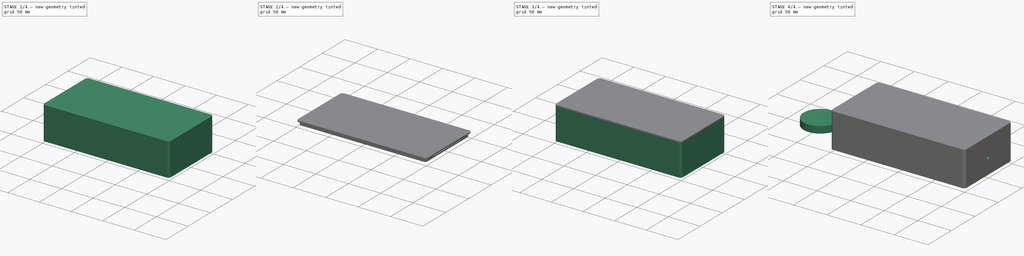
[diagram: build sequence overview — one tinted view per stage of 4, left to right]
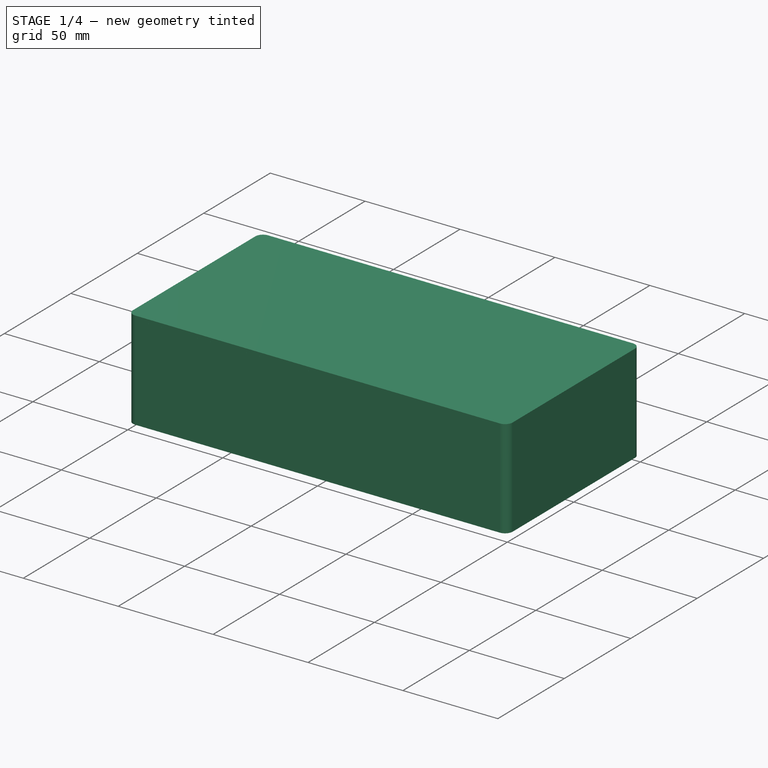
[diagram: stage 1 of 4 — iso view after this stage's code; geometry added in this stage tinted green]
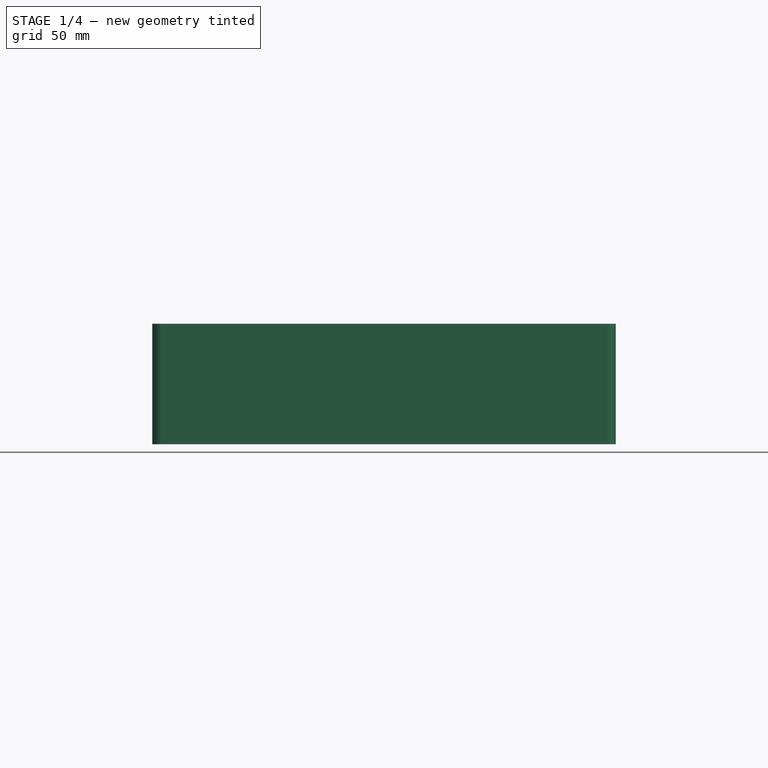
[diagram: stage 1 of 4 — front view after this stage's code; geometry added in this stage tinted green]
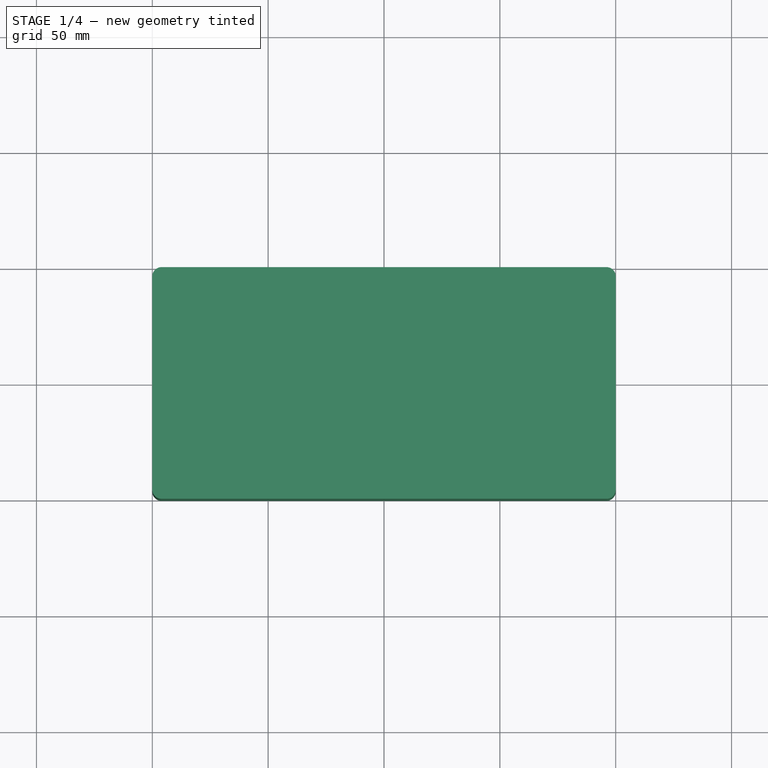
[diagram: stage 1 of 4 — top view after this stage's code; geometry added in this stage tinted green]
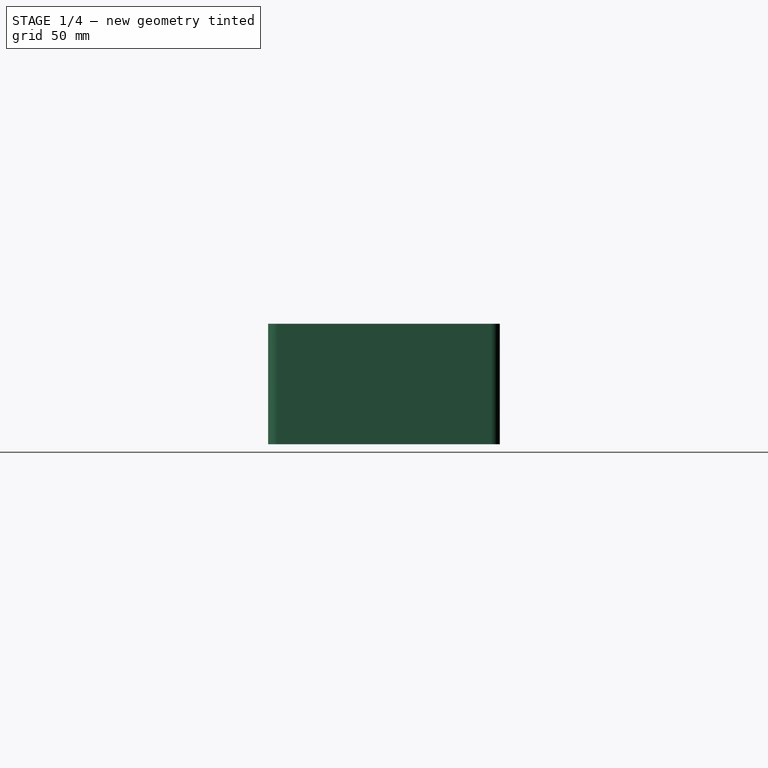
[diagram: stage 1 of 4 — right view after this stage's code; geometry added in this stage tinted green]
FCSTD DOCUMENT  (FreeCAD 0.18R15997 (Git))
Label: ParaBox-5-1
License: All rights reserved
LicenseURL: http://en.wikipedia.org/wiki/All_rights_reserved
objects: Sketcher::SketchObject×8, PartDesign::Pad×5, PartDesign::Plane×5, PartDesign::Body×4, PartDesign::Pocket×3, PartDesign::ShapeBinder×2, PartDesign::Mirrored×2, Spreadsheet::Sheet×1, PartDesign::Thickness×1, PartDesign::Line×1, PartDesign::Chamfer×1, PartDesign::FeatureBase×1
note: 41 computed .brp shape members not serialized (recipe doc carries the construction recipe); baked Part::Feature solids carry a one-line shape summary decoded from their .brp

FEATURE [Sketcher::SketchObject] Sketch  label="BoxBottomSketch"
  MapMode = 5
  Support = -> [XY_Plane]
  expr: Constraints[12] = Spreadsheet.length
  expr: Constraints[13] = Spreadsheet.width
  expr: Constraints[10] = Spreadsheet.outsidefillet
  sketch-geometry (8):
    g0: LineSegment StartX=-96 StartY=50 StartZ=0 EndX=96 EndY=50 EndZ=0
    g1: LineSegment StartX=100 StartY=46 StartZ=0 EndX=100 EndY=-46 EndZ=0
    g2: LineSegment StartX=96 StartY=-50 StartZ=0 EndX=-96 EndY=-50 EndZ=0
    g3: LineSegment StartX=-100 StartY=-46 StartZ=0 EndX=-100 EndY=46 EndZ=0
    g4: ArcOfCircle CenterX=-96 CenterY=46 CenterZ=0 NormalX=0 NormalY=0 NormalZ=1 AngleXU=0 Radius=4 StartAngle=1.5708 EndAngle=3.14159
    g5: ArcOfCircle CenterX=-96 CenterY=-46 CenterZ=0 NormalX=0 NormalY=0 NormalZ=1 AngleXU=0 Radius=4 StartAngle=3.14159 EndAngle=4.71239
    g6: ArcOfCircle CenterX=96 CenterY=-46 CenterZ=0 NormalX=0 NormalY=0 NormalZ=1 AngleXU=0 Radius=4 StartAngle=4.71239 EndAngle=6.28319
    g7: ArcOfCircle CenterX=96 CenterY=46 CenterZ=0 NormalX=0 NormalY=0 NormalZ=1 AngleXU=0 Radius=4 StartAngle=0 EndAngle=1.5708
  constraints (19):
    c: Horizontal(g2)
    c: Vertical(g3)
    c: Tangent(g0,g4) = 1.5708
    c: Tangent(g3,g4) = 1.5708
    c: Tangent(g2,g5) = 1.5708
    c: Tangent(g3,g5) = 1.5708
    c: Tangent(g1,g6) = 1.5708
    c: Tangent(g2,g6) = 1.5708
    c: Tangent(g0,g7) = 1.5708
    c: Tangent(g1,g7) = 1.5708
    c: Radius(g5) = 4
    c: Vertical(g1)
    c: DistanceX(g3,g1) = 200
    c: DistanceY(g2,g0) = 100
    c: Horizontal(g0)
    c: Symmetric(g5,g7,g-1)
    c: Equal(g5,g4)
    c: Equal(g4,g7)
    c: Equal(g7,g6)
FEATURE [Spreadsheet::Sheet] Spreadsheet
  cells = A1=width; B1(width)=100; A2=length; B2(length)=200; A3=height; B3(height)=50; A4=wall; B4(wall)=2; A5=gap; B5(gap)=0.8; A6=outside fillet; B6(outsidefillet)=4; A7=inside fillet; B7(insidefillet)=4; A8=tolerance; B8(tol)=0.05; A9=end hole dia.; B9(endholedia)=5; A10=end cutout height; B10(endcutheight)==Spreadsheet.height * 0.2; A11=end cutout width; B11(endcutwidth)==Spreadsheet.width * 0.4; A12=end cutout offset from bottom; B12(endcutoffset)==Spreadsheet.wall + Spreadsheet.height * 0.1
FEATURE [PartDesign::Pad] Pad  label="BoxBottomPad"
  Length = 50
  Length2 = 100
  Profile = -> Sketch
  Type = 0
  expr: Length = Spreadsheet.height
FEATURE [PartDesign::Body] Body001  label="50mmSizeReferencBody"
  Group = -> [Sketch001,Pad001]
  Origin = -> Origin001
  Tip = -> Pad001
FEATURE [PartDesign::Thickness] Thickness  label="BoxBottomShell"
  Base = -> Pad [Face10]
  BaseFeature = -> Pad
  Join = 1
  Mode = 0
  Reversed = true
  Value = 2
  expr: Value = Spreadsheet.wall
FEATURE [PartDesign::ShapeBinder] ShapeBinder001
  Support = -> [Sketch]
  TraceSupport = false
FEATURE [PartDesign::Plane] DatumPlane001
  AttachmentOffset = pos=(0,0,50) rot=(0,0,1;0rad)
  Length = 228.284
  MapMode = 2
  Placement = pos=(0,0,50) rot=(0,0,1;0rad)
  ResizeMode = 0
  Support = -> [ShapeBinder001]
  Width = 128.284
  expr: AttachmentOffset.Base.z = Spreadsheet.height
FEATURE [Sketcher::SketchObject] Sketch004  label="CoverSketch"
  MapMode = 5
  Placement = pos=(0,0,50) rot=(0,0,1;0rad)
  Support = -> [DatumPlane001]
  expr: Constraints[12] = Spreadsheet.outsidefillet
  expr: Constraints[10] = Spreadsheet.width
  expr: Constraints[8] = Spreadsheet.length
  sketch-geometry (8):
    g0: LineSegment StartX=-96 StartY=50 StartZ=0 EndX=96 EndY=50 EndZ=0
    g1: LineSegment StartX=100 StartY=46 StartZ=0 EndX=100 EndY=-46 EndZ=0
    g2: LineSegment StartX=96 StartY=-50 StartZ=0 EndX=-96 EndY=-50 EndZ=0
    g3: LineSegment StartX=-100 StartY=-46 StartZ=0 EndX=-100 EndY=46 EndZ=0
    g4: ArcOfCircle CenterX=-96 CenterY=46 CenterZ=0 NormalX=0 NormalY=0 NormalZ=1 AngleXU=0 Radius=4 StartAngle=1.5708 EndAngle=3.14159
    g5: ArcOfCircle CenterX=-96 CenterY=-46 CenterZ=0 NormalX=0 NormalY=0 NormalZ=1 AngleXU=0 Radius=4 StartAngle=3.14159 EndAngle=4.71239
    g6: ArcOfCircle CenterX=96 CenterY=-46 CenterZ=0 NormalX=0 NormalY=0 NormalZ=1 AngleXU=0 Radius=4 StartAngle=4.71239 EndAngle=6.28319
    g7: ArcOfCircle CenterX=96 CenterY=46 CenterZ=0 NormalX=0 NormalY=0 NormalZ=1 AngleXU=0 Radius=4 StartAngle=9e-16 EndAngle=1.5708
  constraints (19):
    c: Tangent(g0,g4) = 1.5708
    c: Tangent(g3,g4) = 1.5708
    c: Tangent(g3,g5) = 1.5708
    c: Tangent(g2,g5) = 1.5708
    c: Tangent(g0,g7) = 1.5708
    c: Tangent(g7,g1) = 1.5708
    c: Tangent(g6,g2) = 1.5708
    c: Tangent(g6,g1) = 1.5708
    c: DistanceX(g3,g1) = 200
    c: Horizontal(g0)
    c: DistanceY(g2,g0) = 100
    c: Vertical(g1)
    c: Radius(g4) = 4
    c: Vertical(g3)
    c: Horizontal(g2)
    c: Equal(g4,g7)
    c: Equal(g7,g6)
    c: Equal(g6,g5)
    c: Symmetric(g7,g5,g-1)
FEATURE [PartDesign::Pad] Pad003  label="CoverPad"
  Length = 2
  Length2 = 100
  Placement = pos=(0,0,50) rot=(0,0,1;0rad)
  Profile = -> Sketch004
  Type = 0
  expr: Length = Spreadsheet.wall
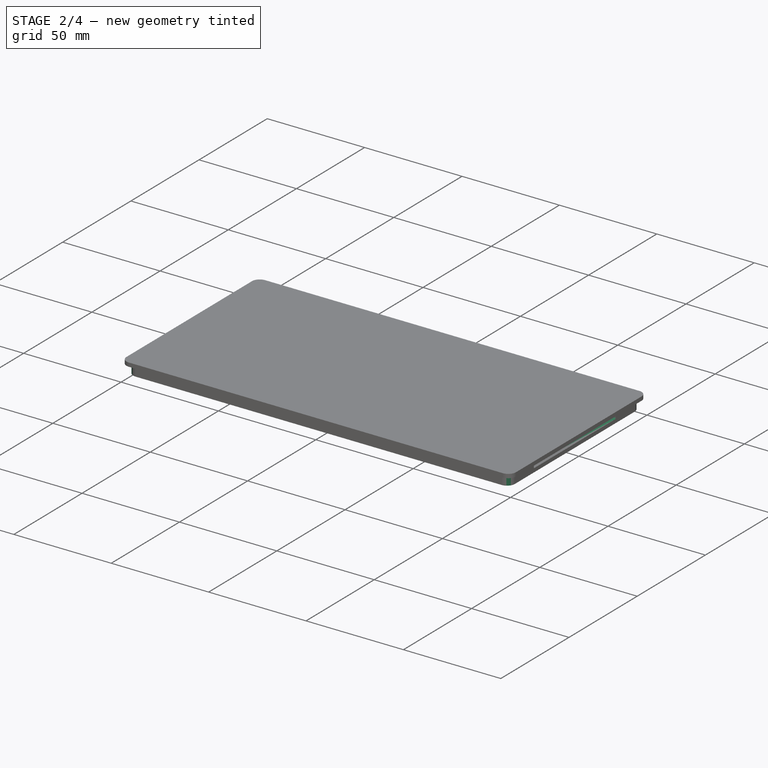
[diagram: stage 2 of 4 — iso view after this stage's code; geometry added in this stage tinted green]
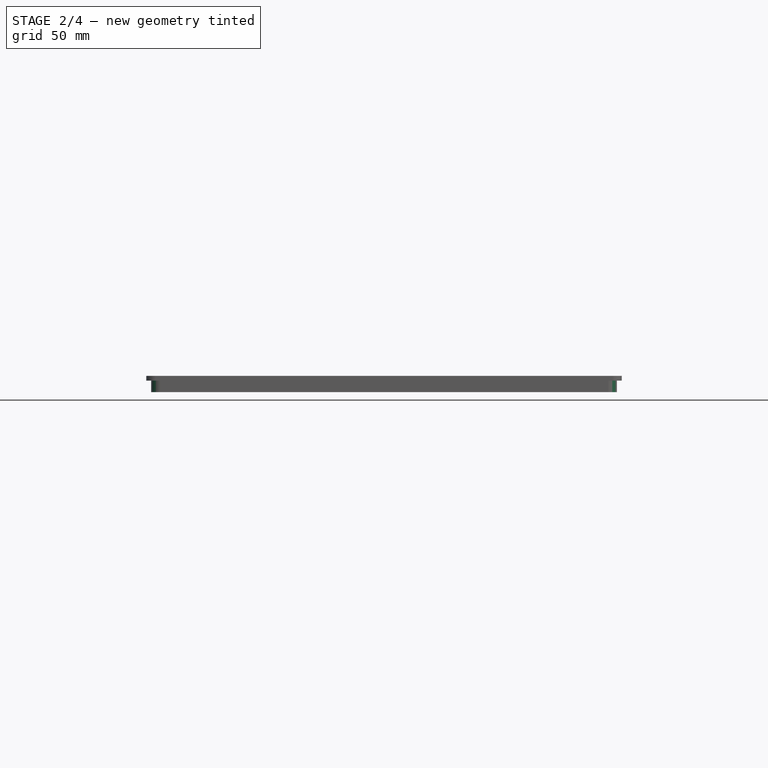
[diagram: stage 2 of 4 — front view after this stage's code; geometry added in this stage tinted green]
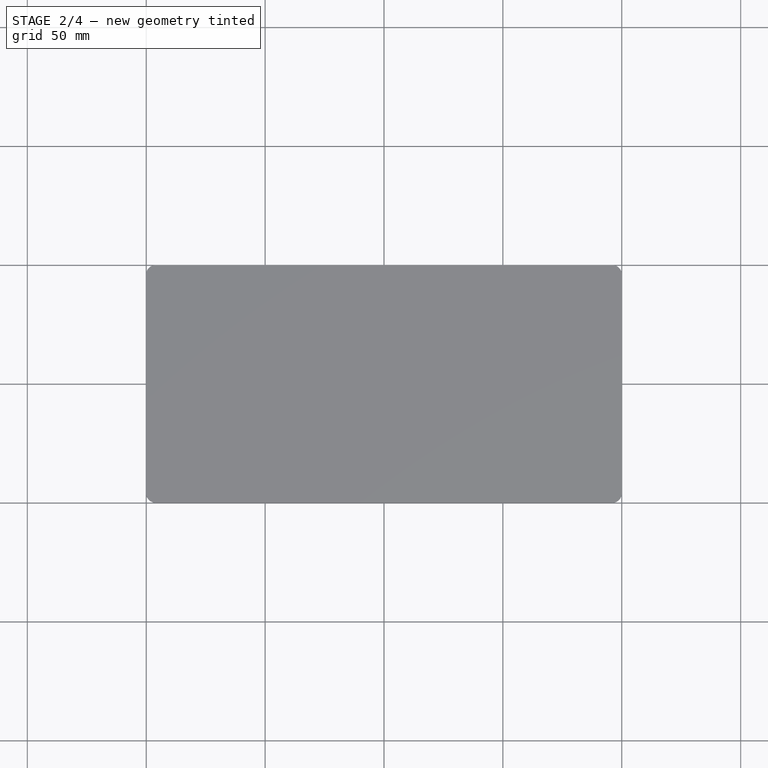
[diagram: stage 2 of 4 — top view after this stage's code; geometry added in this stage tinted green]
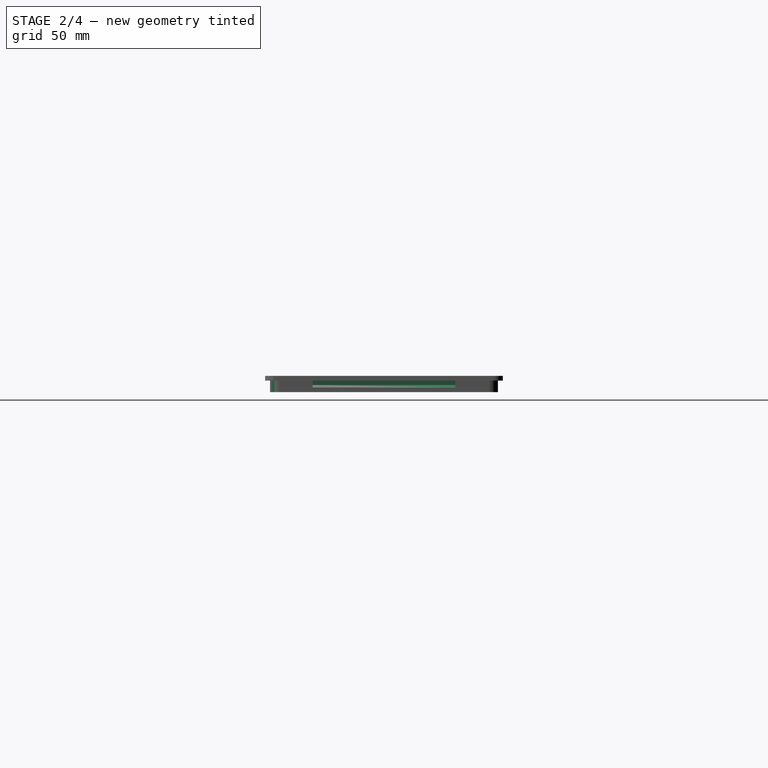
[diagram: stage 2 of 4 — right view after this stage's code; geometry added in this stage tinted green]
FEATURE [Sketcher::SketchObject] Sketch007  label="CoverLocatorSketch"
  MapMode = 5
  Placement = pos=(0,0,50) rot=(0,0,1;0rad)
  Support = -> [DatumPlane001]
  expr: Constraints[30] = Spreadsheet.insidefillet
  expr: Constraints[33] = Spreadsheet.width - 4.2 * Spreadsheet.wall
  expr: Constraints[32] = Spreadsheet.length - 4.2 * Spreadsheet.wall
  expr: Constraints[17] = Spreadsheet.width - 2 * (Spreadsheet.wall + Spreadsheet.tol)
  expr: Constraints[16] = Spreadsheet.length - 2 * (Spreadsheet.wall + Spreadsheet.tol)
  expr: Constraints[12] = Spreadsheet.insidefillet
  sketch-geometry (16):
    g0: LineSegment StartX=-93.95 StartY=47.95 StartZ=0 EndX=93.95 EndY=47.95 EndZ=0
    g1: LineSegment StartX=97.95 StartY=43.95 StartZ=0 EndX=97.95 EndY=-43.95 EndZ=0
    g2: LineSegment StartX=93.95 StartY=-47.95 StartZ=0 EndX=-93.95 EndY=-47.95 EndZ=0
    g3: LineSegment StartX=-97.95 StartY=-43.95 StartZ=0 EndX=-97.95 EndY=43.95 EndZ=0
    g4: ArcOfCircle CenterX=-93.95 CenterY=43.95 CenterZ=0 NormalX=0 NormalY=0 NormalZ=1 AngleXU=0 Radius=4 StartAngle=1.5708 EndAngle=3.14159
    g5: ArcOfCircle CenterX=-93.95 CenterY=-43.95 CenterZ=0 NormalX=0 NormalY=0 NormalZ=1 AngleXU=0 Radius=4 StartAngle=3.14159 EndAngle=4.71239
    g6: ArcOfCircle CenterX=93.95 CenterY=-43.95 CenterZ=0 NormalX=0 NormalY=0 NormalZ=1 AngleXU=0 Radius=4 StartAngle=4.71239 EndAngle=6.28319
    g7: ArcOfCircle CenterX=93.95 CenterY=43.95 CenterZ=0 NormalX=0 NormalY=0 NormalZ=1 AngleXU=0 Radius=4 StartAngle=-9e-16 EndAngle=1.5708
    g8: LineSegment StartX=-91.8 StartY=45.8 StartZ=0 EndX=91.8 EndY=45.8 EndZ=0
    g9: LineSegment StartX=95.8 StartY=41.8 StartZ=0 EndX=95.8 EndY=-41.8 EndZ=0
    g10: LineSegment StartX=91.8 StartY=-45.8 StartZ=0 EndX=-91.8 EndY=-45.8 EndZ=0
    g11: LineSegment StartX=-95.8 StartY=-41.8 StartZ=0 EndX=-95.8 EndY=41.8 EndZ=0
    g12: ArcOfCircle CenterX=-91.8 CenterY=41.8 CenterZ=0 NormalX=0 NormalY=0 NormalZ=1 AngleXU=0 Radius=4 StartAngle=1.5708 EndAngle=3.14159
    g13: ArcOfCircle CenterX=-91.8 CenterY=-41.8 CenterZ=0 NormalX=0 NormalY=0 NormalZ=1 AngleXU=0 Radius=4 StartAngle=3.14159 EndAngle=4.71239
    g14: ArcOfCircle CenterX=91.8 CenterY=-41.8 CenterZ=0 NormalX=0 NormalY=0 NormalZ=1 AngleXU=0 Radius=4 StartAngle=4.71239 EndAngle=6.28319
    g15: ArcOfCircle CenterX=91.8 CenterY=41.8 CenterZ=0 NormalX=0 NormalY=0 NormalZ=1 AngleXU=0 Radius=4 StartAngle=6e-16 EndAngle=1.5708
  constraints (36):
    c: Horizontal(g0)
    c: Horizontal(g2)
    c: Vertical(g1)
    c: Vertical(g3)
    c: Tangent(g0,g4) = 1.5708
    c: Tangent(g3,g4) = 1.5708
    c: Tangent(g2,g5) = 1.5708
    c: Tangent(g3,g5) = 1.5708
    c: Tangent(g1,g6) = 1.5708
    c: Tangent(g2,g6) = 1.5708
    c: Tangent(g0,g7) = 1.5708
    c: Tangent(g1,g7) = 1.5708
    c: Radius(g4) = 4
    c: Equal(g4,g5)
    c: Symmetric(g4,g7,g-2)
    c: Symmetric(g7,g6,g-1)
    c: Distance(g3,g1) = 195.9
    c: Distance(g0,g2) = 95.9
    c: Horizontal(g8)
    c: Horizontal(g10)
    c: Vertical(g9)
    c: Vertical(g11)
    c: Tangent(g8,g12) = 1.5708
    c: Tangent(g11,g12) = 1.5708
    c: Tangent(g10,g13) = 1.5708
    c: Tangent(g11,g13) = 1.5708
    c: Tangent(g9,g14) = 1.5708
    c: Tangent(g10,g14) = 1.5708
    c: Tangent(g8,g15) = 1.5708
    c: Tangent(g9,g15) = 1.5708
    c: Radius(g12) = 4
    c: Equal(g12,g13)
    c: Distance(g11,g9) = 191.6
    c: Distance(g8,g10) = 91.6
    c: Symmetric(g12,g15,g-2)
    c: Symmetric(g15,g14,g-1)
FEATURE [PartDesign::Pad] Pad006  label="CoverLocatorPad"
  BaseFeature = -> Pad003
  Length = 4.8
  Length2 = 100
  Placement = pos=(0,0,50) rot=(0,0,1;0rad)
  Profile = -> Sketch007
  Reversed = true
  Type = 0
  expr: Length = Spreadsheet.wall * 2.4
FEATURE [PartDesign::ShapeBinder] ShapeBinder002
  Placement = pos=(-98,0,50) rot=(0,0.707107,0.707107;3.14159rad)
  Support = -> [Sketch006]
  TraceSupport = false
FEATURE [PartDesign::Plane] DatumPlane002
  Length = 222.271
  MapMode = 2
  Placement = pos=(-98,0,50) rot=(0,0.707107,0.707107;3.14159rad)
  ResizeMode = 0
  Support = -> [ShapeBinder002]
  Width = 84.2711
FEATURE [Sketcher::SketchObject] Sketch008  label="CoverDetentSketch"
  ExternalGeometry = -> [ShapeBinder002,Pad006]
  MapMode = 5
  Placement = pos=(-98,0,50) rot=(0,0.707107,0.707107;3.14159rad)
  Support = -> [DatumPlane002]
  expr: Constraints[7] = Spreadsheet.wall * 0.5 + Spreadsheet.tol
  sketch-geometry (5):
    g0: LineSegment StartX=-1.1 StartY=-1.8e-15 StartZ=0 EndX=-0.05 EndY=-1.8e-15 EndZ=0
    g1: LineSegment StartX=-0.05 StartY=-1.8e-15 StartZ=0 EndX=-0.05 EndY=-2.85 EndZ=0
    g2: LineSegment StartX=-1.1 StartY=-1.8 StartZ=0 EndX=-1.1 EndY=-1.8e-15 EndZ=0
    g3: LineSegment StartX=-1.1 StartY=-1.8 StartZ=0 EndX=-0.05 EndY=-2.85 EndZ=0
    g4: LineSegment [constr] StartX=-1 StartY=-1.8 StartZ=0 EndX=-1.1 EndY=-1.8 EndZ=0
  constraints (13):
    c: Coincident(g2,g0)
    c: Coincident(g1,g0)
    c: Coincident(g0,g-8)
    c: Horizontal(g0)
    c: Coincident(g3,g2)
    c: Parallel(g-5,g2)
    c: Parallel(g-6,g3)
    c: Distance(g0) = 1.05
    c: Coincident(g4,g-6)
    c: Coincident(g4,g2)
    c: Horizontal(g4)
    c: Coincident(g1,g3)
    c: Vertical(g1)
FEATURE [PartDesign::Pocket] Pocket  label="CoverDetentPocket"
  BaseFeature = -> Pad006
  Length = 60
  Length2 = 100
  Midplane = true
  Placement = pos=(0,0,50) rot=(0,0,1;0rad)
  Profile = -> Sketch008
  Type = 0
  expr: Length = Spreadsheet.width * 0.6
FEATURE [PartDesign::Body] Body  label="BoxBottomBody"
  Group = -> [Sketch,Pad,Thickness,DatumPlane,Sketch006,Pad005,Mirrored,DatumPlane003,Sketch009,Pocket001,DatumPlane004,Sketch010,Pocket002,DatumLine]
  Origin = -> Origin
  Tip = -> Pocket002
FEATURE [PartDesign::Mirrored] Mirrored001  label="CoverDetentMirrored"
  BaseFeature = -> Pocket
  MirrorPlane = -> YZ_Plane003
  Originals = -> [Pocket]
  Placement = pos=(0,0,50) rot=(0,0,1;0rad)
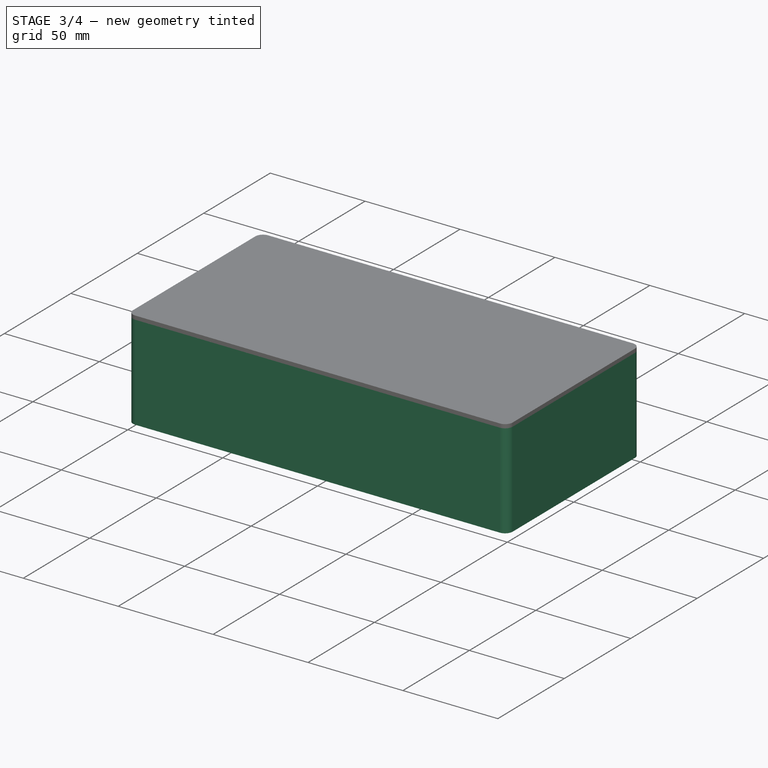
[diagram: stage 3 of 4 — iso view after this stage's code; geometry added in this stage tinted green]
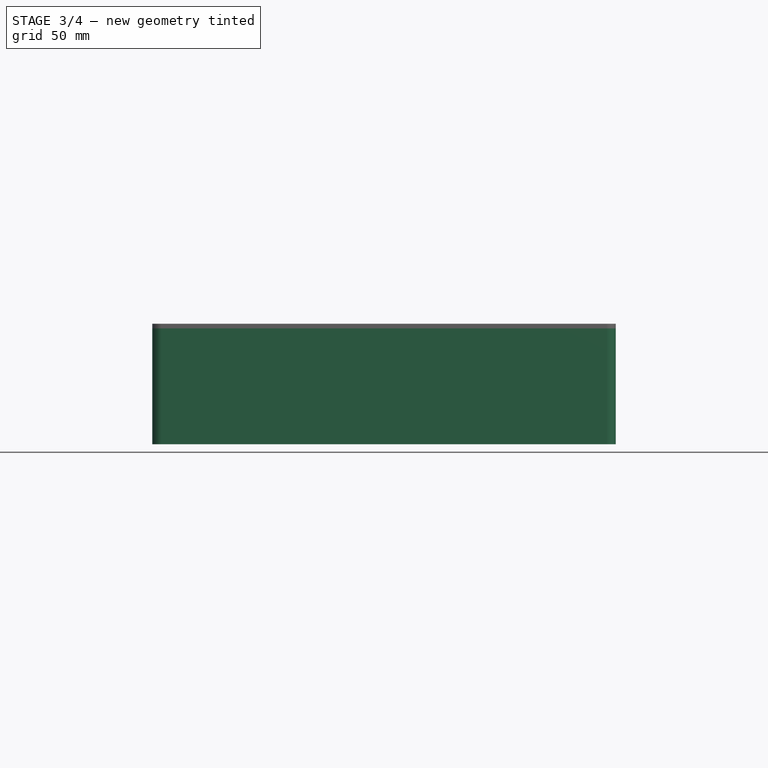
[diagram: stage 3 of 4 — front view after this stage's code; geometry added in this stage tinted green]
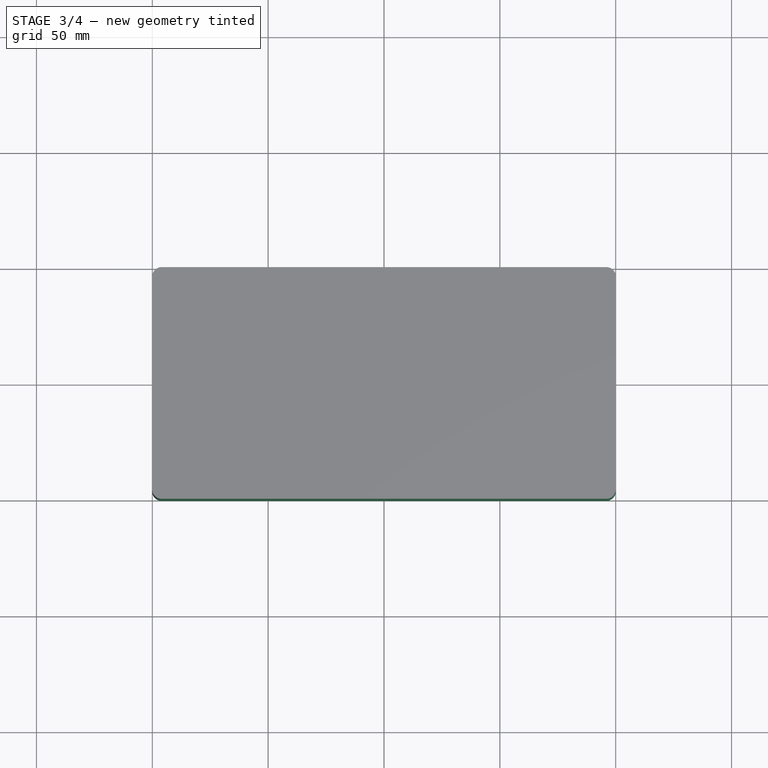
[diagram: stage 3 of 4 — top view after this stage's code; geometry added in this stage tinted green]
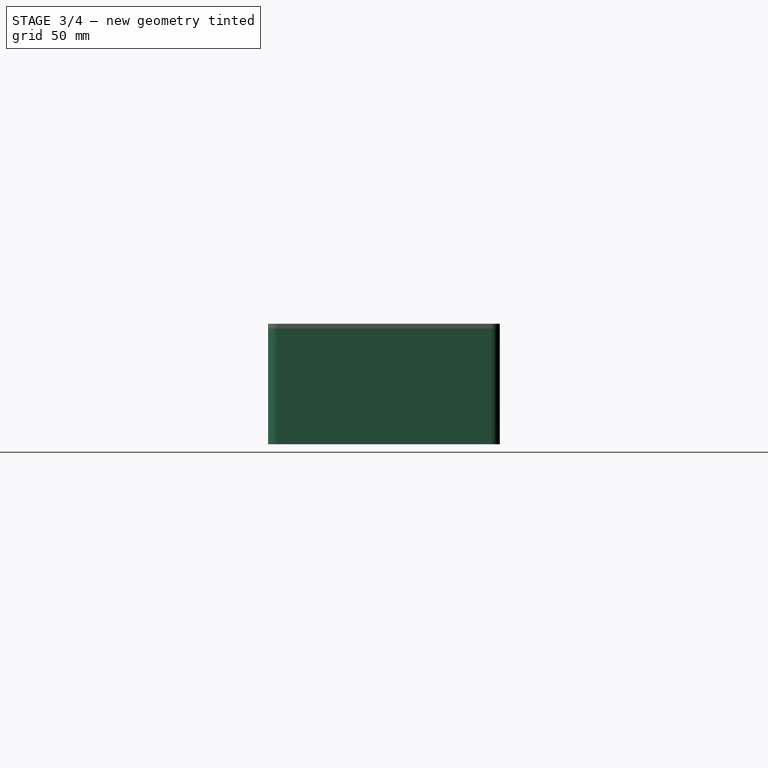
[diagram: stage 3 of 4 — right view after this stage's code; geometry added in this stage tinted green]
FEATURE [PartDesign::Plane] DatumPlane003
  AttachmentOffset = pos=(0,0,100) rot=(0,0,1;0rad)
  Length = 115.492
  MapMode = 5
  Placement = pos=(100,-2.22e-14,2.22e-14) rot=(0.57735,0.57735,0.57735;2.0944rad)
  ResizeMode = 0
  Support = -> [YZ_Plane]
  Width = 75.4919
  expr: AttachmentOffset.Base.z = Spreadsheet.length / 2
FEATURE [Sketcher::SketchObject] Sketch009  label="RightEndHoleSketch"
  MapMode = 5
  Placement = pos=(100,-2.22e-14,2.22e-14) rot=(0.57735,0.57735,0.57735;2.0944rad)
  Support = -> [DatumPlane003]
  expr: Constraints[2] = Spreadsheet.height / 2 - Spreadsheet.wall
  expr: Constraints[1] = Spreadsheet.endholedia
  sketch-geometry (1):
    g0: Circle CenterX=0 CenterY=23 CenterZ=0 NormalX=0 NormalY=0 NormalZ=1 AngleXU=0 Radius=2.5
  constraints (3):
    c: PointOnObject(g0,g-2)
    c: Diameter(g0) = 5
    c: Distance(g-1,g0) = 23
FEATURE [PartDesign::Plane] DatumPlane004
  AttachmentOffset = pos=(0,0,-100) rot=(0,0,1;0rad)
  Length = 115.492
  MapMode = 5
  Placement = pos=(-100,2.22e-14,-2.22e-14) rot=(0.57735,0.57735,0.57735;2.0944rad)
  ResizeMode = 0
  Support = -> [YZ_Plane]
  Width = 75.4919
  expr: AttachmentOffset.Base.z = Spreadsheet.length / -2
FEATURE [Sketcher::SketchObject] Sketch010  label="LeftEndCutoutSketch"
  MapMode = 5
  Placement = pos=(-100,2.22e-14,-2.22e-14) rot=(0.57735,0.57735,0.57735;2.0944rad)
  Support = -> [DatumPlane004]
  expr: Constraints[9] = Spreadsheet.endcutheight
  expr: Constraints[10] = Spreadsheet.endcutoffset
  expr: Constraints[8] = Spreadsheet.endcutwidth
  sketch-geometry (4):
    g0: LineSegment StartX=-20 StartY=17 StartZ=0 EndX=20 EndY=17 EndZ=0
    g1: LineSegment StartX=20 StartY=17 StartZ=0 EndX=20 EndY=7 EndZ=0
    g2: LineSegment StartX=20 StartY=7 StartZ=0 EndX=-20 EndY=7 EndZ=0
    g3: LineSegment StartX=-20 StartY=7 StartZ=0 EndX=-20 EndY=17 EndZ=0
  constraints (11):
    c: Coincident(g0,g1)
    c: Coincident(g1,g2)
    c: Coincident(g2,g3)
    c: Coincident(g3,g0)
    c: Horizontal(g2)
    c: Vertical(g1)
    c: Vertical(g3)
    c: Symmetric(g0,g0,g-2)
    c: Distance(g0) = 40
    c: Distance(g1) = 10
    c: DistanceY(g-1,g2) = 7
FEATURE [PartDesign::Line] DatumLine
  AttacherType = Attacher::AttachEngineLine
  MapMode = 29
  Placement = pos=(-98,0,50) rot=(0,0.707107,0.707107;3.14159rad)
  Support = -> [Thickness]
FEATURE [PartDesign::Plane] DatumPlane
  Length = 221.909
  MapMode = 2
  Placement = pos=(-98,0,50) rot=(0,0.707107,0.707107;3.14159rad)
  ResizeMode = 0
  Support = -> [DatumLine]
  Width = 81.9089
FEATURE [Sketcher::SketchObject] Sketch006  label="DetentSketch"
  MapMode = 5
  Placement = pos=(-98,0,50) rot=(0,0.707107,0.707107;3.14159rad)
  Support = -> [DatumPlane]
  expr: Constraints[7] = Spreadsheet.wall * 0.5
  expr: Constraints[5] = Spreadsheet.wall * 1.4
  sketch-geometry (4):
    g0: LineSegment StartX=0 StartY=0 StartZ=0 EndX=-1 EndY=-1 EndZ=0
    g1: LineSegment StartX=-1 StartY=-1 StartZ=0 EndX=-1 EndY=-1.8 EndZ=0
    g2: LineSegment StartX=-1 StartY=-1.8 StartZ=0 EndX=0 EndY=-2.8 EndZ=0
    g3: LineSegment StartX=0 StartY=-2.8 StartZ=0 EndX=0 EndY=0 EndZ=0
  constraints (11):
    c: Coincident(g0,g1)
    c: Coincident(g1,g2)
    c: Coincident(g2,g3)
    c: Coincident(g3,g0)
    c: Vertical(g1)
    c: Distance(g3) = 2.8
    c: Angle(g0,g3) = 0.785398
    c: DistanceX(g0,g0) = 1
    c: Vertical(g3)
    c: Perpendicular(g2,g0)
    c: Coincident(g0,g-1)
FEATURE [PartDesign::Pad] Pad005  label="DetentLeftPad"
  BaseFeature = -> Thickness
  Length = 50
  Length2 = 100
  Midplane = true
  Profile = -> Sketch006
  Type = 0
  expr: Length = Spreadsheet.width * 0.5
FEATURE [PartDesign::Mirrored] Mirrored  label="DetentRightMirror"
  BaseFeature = -> Pad005
  MirrorPlane = -> YZ_Plane
  Originals = -> [Pad005]
FEATURE [PartDesign::Chamfer] Chamfer  label="CoverChamfer"
  Base = -> Mirrored001 [Edge41]
  BaseFeature = -> Mirrored001
  Placement = pos=(0,0,50) rot=(0,0,1;0rad)
  Size = 1
FEATURE [PartDesign::Body] Body003  label="CoverBody"
  Group = -> [Sketch004,ShapeBinder001,DatumPlane001,Pad003,Sketch007,Pad006,ShapeBinder002,DatumPlane002,Sketch008,Pocket,Mirrored001,Chamfer]
  Origin = -> Origin003
  Tip = -> Chamfer
FEATURE [PartDesign::FeatureBase] Clone  label="CoverClone"
  BaseFeature = -> Body003
FEATURE [PartDesign::Body] Body004  label="CoverCloneFlippedBody"
  BaseFeature = -> Body003
  Group = -> [Clone]
  Origin = -> Origin004
  Placement = pos=(0,0,0) rot=(1,0,0;3.14159rad)
  Tip = -> Clone
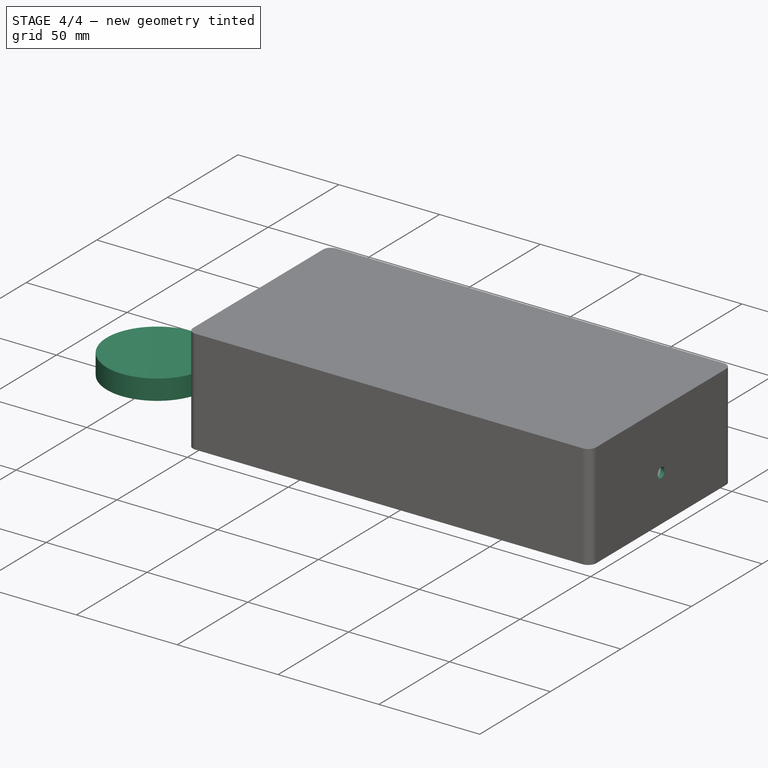
[diagram: stage 4 of 4 — iso view after this stage's code; geometry added in this stage tinted green]
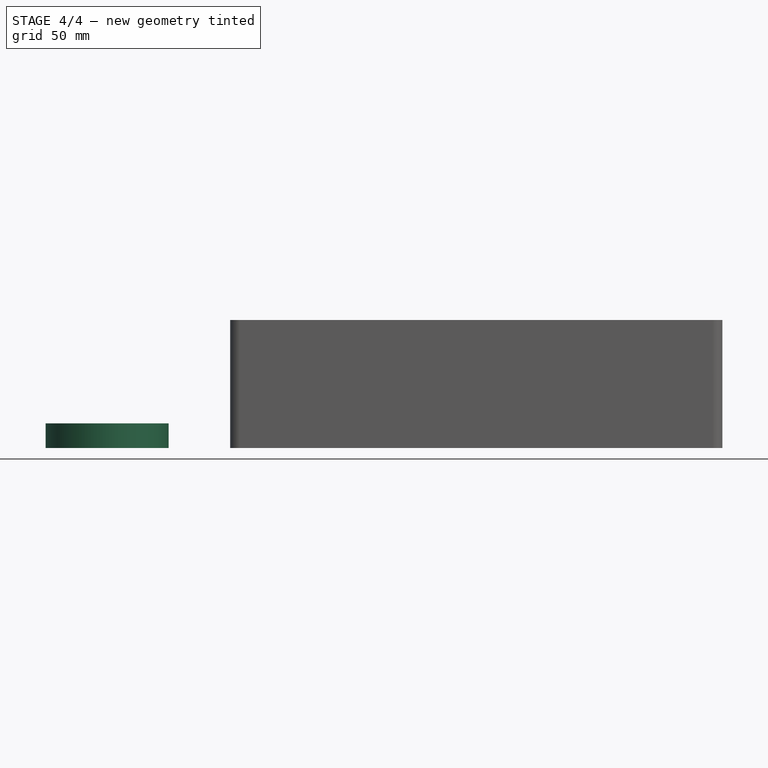
[diagram: stage 4 of 4 — front view after this stage's code; geometry added in this stage tinted green]
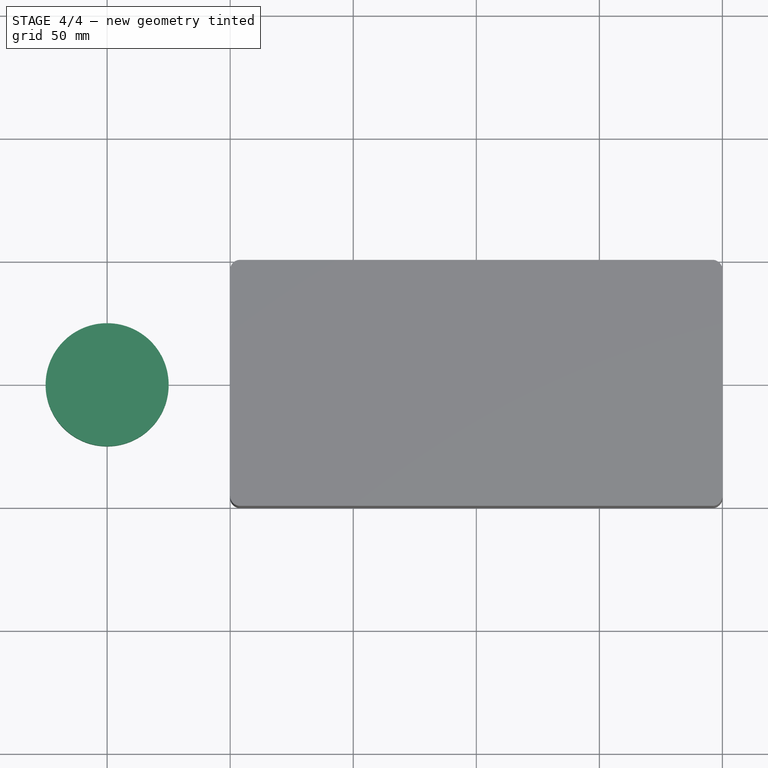
[diagram: stage 4 of 4 — top view after this stage's code; geometry added in this stage tinted green]
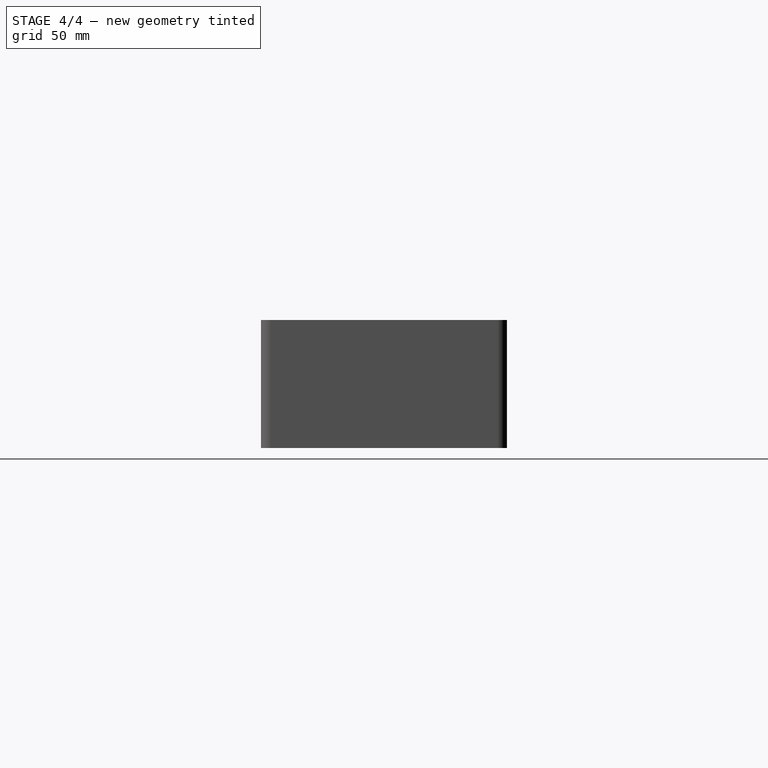
[diagram: stage 4 of 4 — right view after this stage's code; geometry added in this stage tinted green]
FEATURE [Sketcher::SketchObject] Sketch001
  MapMode = 5
  Support = -> [XY_Plane001]
  sketch-geometry (1):
    g0: Circle CenterX=-150 CenterY=0 CenterZ=0 NormalX=0 NormalY=0 NormalZ=1 AngleXU=0 Radius=25
  constraints (3):
    c: PointOnObject(g0,g-1)
    c: Diameter(g0) = 50
    c: Distance(g-1,g0) = 150
FEATURE [PartDesign::Pad] Pad001
  Length = 10
  Length2 = 100
  Profile = -> Sketch001
  Type = 0
FEATURE [PartDesign::Pocket] Pocket001  label="RightEndHolePocket"
  BaseFeature = -> Mirrored
  Length = 5
  Length2 = 100
  Profile = -> Sketch009
  Type = 2
FEATURE [PartDesign::Pocket] Pocket002  label="LeftEndCutoutPocket"
  BaseFeature = -> Pocket001
  Length = 5
  Length2 = 100
  Profile = -> Sketch010
  Reversed = true
  Type = 2
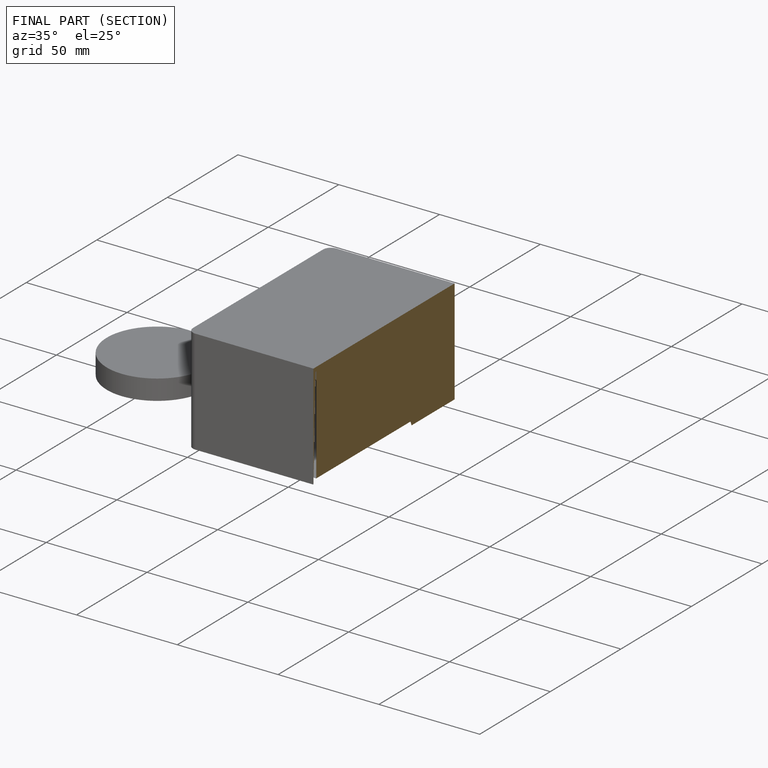
[diagram: finished part — half-section view (interior)]
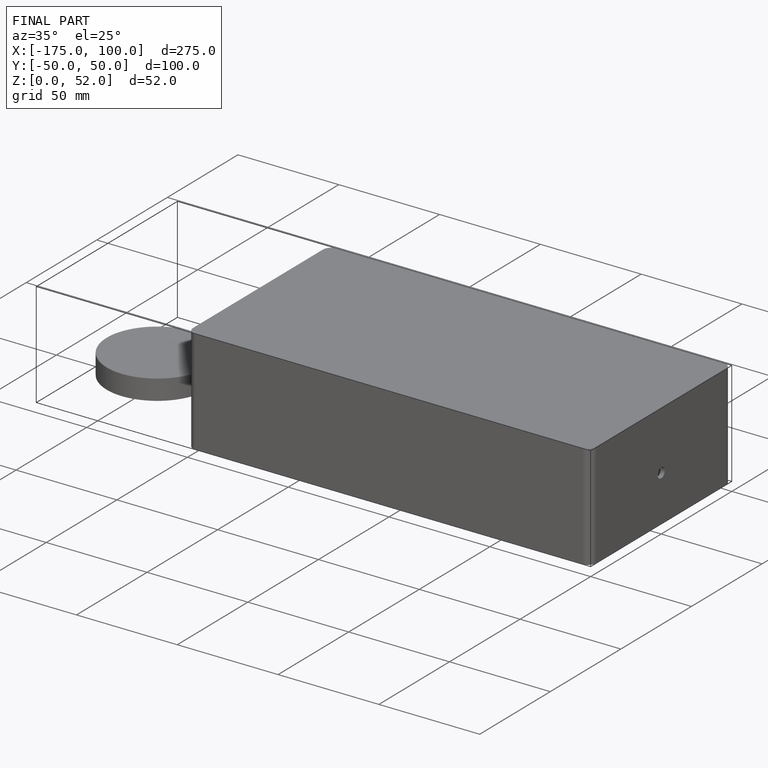
[diagram: finished part — iso view with bounding-box wireframe]
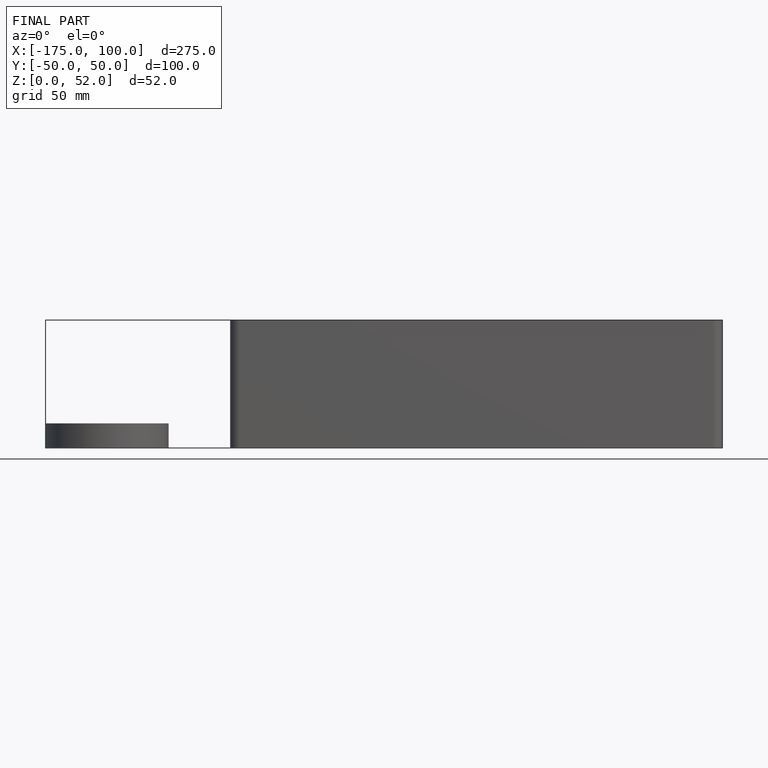
[diagram: finished part — front view with bounding-box wireframe]
